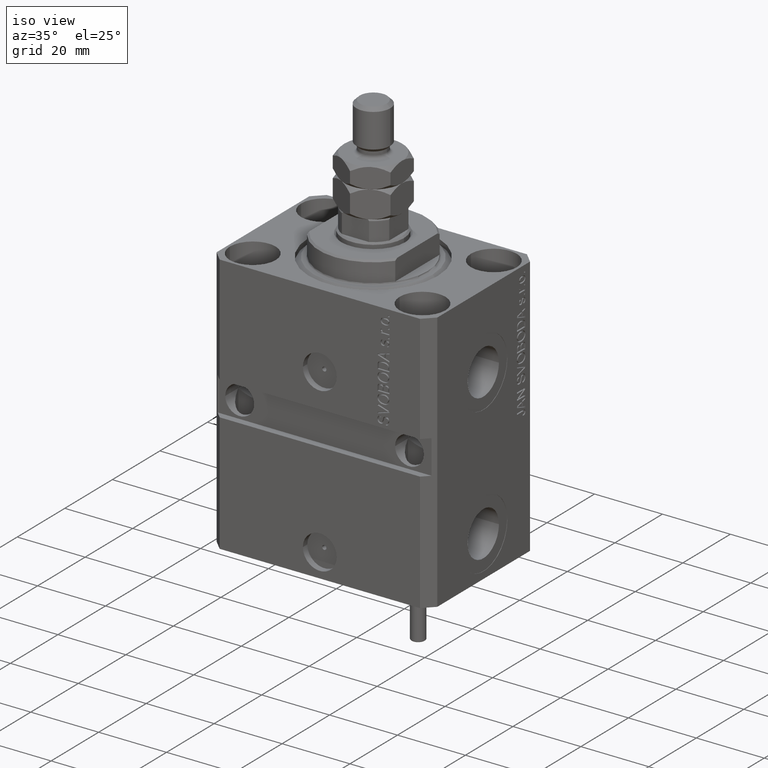
[diagram: clean part render]
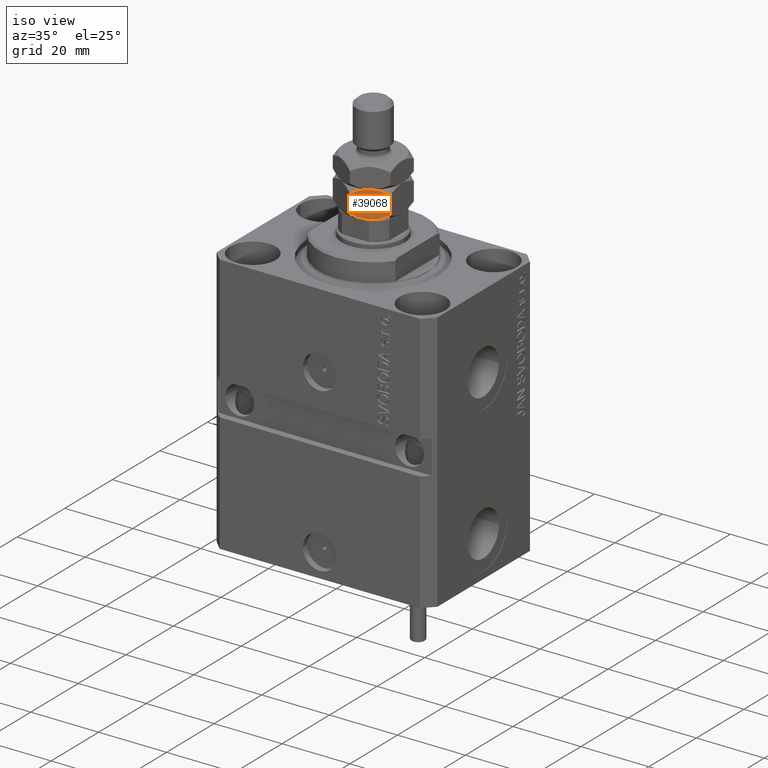
[diagram: same view with one face highlighted and labeled with its STEP entity id]
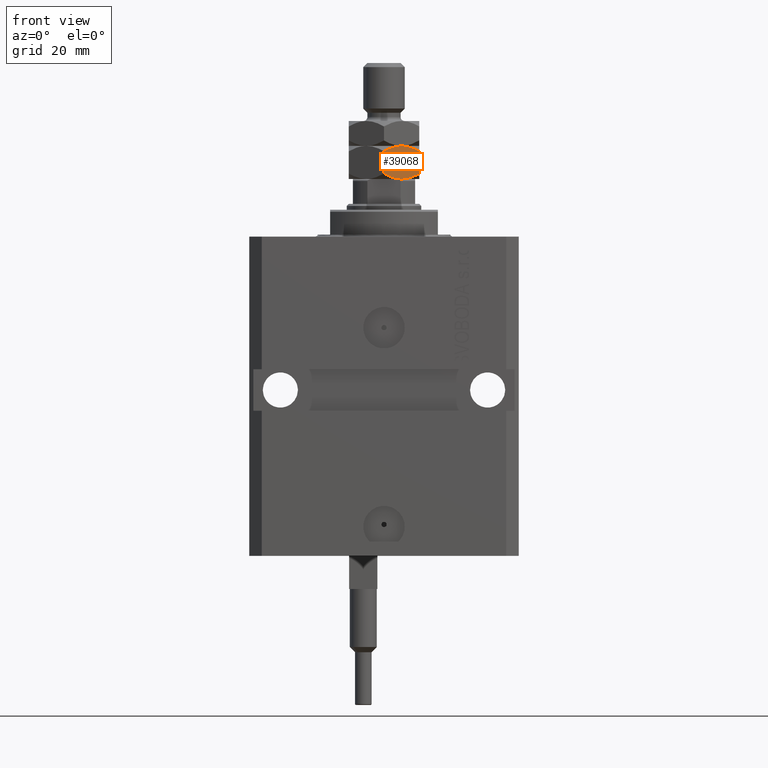
[diagram: same view with one face highlighted and labeled with its STEP entity id]
A machine part, iso view. The second image highlights one B-rep face of the part: STEP entity #39068.
A second angle (front view) of the same face is appended — the face is thin or edge-on in the first view.
In plain terms, the highlighted planar face has unit normal (-0.5, 0.866, 0).
Its self-contained STEP definition (entity closure, byte-faithful):
#144 = CARTESIAN_POINT ( 'NONE',  ( 2.766281260884825066, -8.217841345597570069, 7.839178292058168296 ) ) ;
#308 = CARTESIAN_POINT ( 'NONE',  ( -9.757819552369539906E-16, -9.814954576223637872, 8.000000000000000000 ) ) ;
#486 = CARTESIAN_POINT ( 'NONE',  ( 4.989245346831671313, -6.934412432177284202, 8.000000000000001776 ) ) ;
#729 = CARTESIAN_POINT ( 'NONE',  ( 4.249999999999994671, -7.361215932167728404, 8.000000000000000000 ) ) ;
#3282 = VECTOR ( 'NONE', #4591, 1000.000000000000000 ) ;
#3397 = FACE_OUTER_BOUND ( 'NONE', #32825, .T. ) ;
#3820 = B_SPLINE_CURVE_WITH_KNOTS ( 'NONE', 3,
 ( #39101, #27460, #24167, #43654, #144, #19876, #4426, #4933 ),
 .UNSPECIFIED., .F., .F.,
 ( 4, 2, 2, 4 ),
 ( 2.544313836662128767E-07, 0.002543776790731947998, 0.003815537970406090475, 0.005087299150080232951 ),
 .UNSPECIFIED. ) ;
#4031 = CARTESIAN_POINT ( 'NONE',  ( 7.834310611062749174, -5.291813236011422283, 7.069381371676068504 ) ) ;
#4426 = CARTESIAN_POINT ( 'NONE',  ( 3.877770021349439045, -7.576123010542081815, 8.000000000000003553 ) ) ;
#4591 = DIRECTION ( 'NONE',  ( -0.000000000000000000, -0.000000000000000000, -1.000000000000000000 ) ) ;
#4933 = CARTESIAN_POINT ( 'NONE',  ( 4.249999999999994671, -7.361215932167728404, 8.000000000000000000 ) ) ;
#5215 = CARTESIAN_POINT ( 'NONE',  ( 5.733718739115172269, -6.504590518737895621, 0.1608217079418340634 ) ) ;
#6399 = CARTESIAN_POINT ( 'NONE',  ( 6.092930036521920556, -6.297199779484154547, 0.2536240893246553552 ) ) ;
#6767 = CARTESIAN_POINT ( 'NONE',  ( 0.6656893889372494932, -9.430618628324040742, 0.9306186283239298307 ) ) ;
#7447 = CARTESIAN_POINT ( 'NONE',  ( -9.757819552369539906E-16, -9.814954576223637872, 8.000000000000000000 ) ) ;
#7835 = CARTESIAN_POINT ( 'NONE',  ( 7.149107353189445568, -5.687415521394182605, 7.399061587263878970 ) ) ;
#8000 = AXIS2_PLACEMENT_3D ( 'NONE', #7447, #23373, #19334 ) ;
#10754 = PLANE ( 'NONE',  #8000 ) ;
#11133 = B_SPLINE_CURVE_WITH_KNOTS ( 'NONE', 3,
 ( #729, #486, #46558, #7835, #4031, #39703 ),
 .UNSPECIFIED., .F., .F.,
 ( 4, 2, 4 ),
 ( 0.005087299150080232951, 0.007613005268011856577, 0.01013871138594348020 ),
 .UNSPECIFIED. ) ;
#13066 = CARTESIAN_POINT ( 'NONE',  ( 4.249999999999997335, -7.361215932167732845, 0.000000000000000000 ) ) ;
#13742 = ORIENTED_EDGE ( 'NONE', *, *, #23133, .F. ) ;
#15969 = CARTESIAN_POINT ( 'NONE',  ( -1.010883460254179403E-15, -9.814954576223637872, 1.314954576223630323 ) ) ;
#17154 = ORIENTED_EDGE ( 'NONE', *, *, #42890, .T. ) ;
#17338 = ORIENTED_EDGE ( 'NONE', *, *, #42826, .F. ) ;
#17811 = CARTESIAN_POINT ( 'NONE',  ( 4.249999999999997335, -7.361215932167732845, 0.000000000000000000 ) ) ;
#17912 = CARTESIAN_POINT ( 'NONE',  ( 1.350892646810552433, -9.035016342941277756, 0.6009384127361203642 ) ) ;
#18160 = VERTEX_POINT ( 'NONE', #21238 ) ;
#19334 = DIRECTION ( 'NONE',  ( -0.8660254037844389297, -0.4999999999999995559, 0.000000000000000000 ) ) ;
#19869 = CARTESIAN_POINT ( 'NONE',  ( -7.581970720220202129E-16, -9.814954576223637872, 6.685045423776371010 ) ) ;
#19876 = CARTESIAN_POINT ( 'NONE',  ( 3.499970675361007366, -7.794245564648166535, 7.966263250401633300 ) ) ;
#20163 = VERTEX_POINT ( 'NONE', #19869 ) ;
#21238 = CARTESIAN_POINT ( 'NONE',  ( 4.249999999999994671, -7.361215932167728404, 8.000000000000000000 ) ) ;
#21457 = B_SPLINE_CURVE_WITH_KNOTS ( 'NONE', 3,
 ( #40137, #24940, #36330, #6399, #5215, #47478, #40380, #13066 ),
 .UNSPECIFIED., .F., .F.,
 ( 4, 2, 2, 4 ),
 ( 2.544313836654547822E-07, 0.002543776790731953636, 0.003815537970406099148, 0.005087299150080244227 ),
 .UNSPECIFIED. ) ;
#22562 = EDGE_CURVE ( 'NONE', #32079, #24687, #21457, .T. ) ;
#23133 = EDGE_CURVE ( 'NONE', #18160, #23656, #11133, .T. ) ;
#23373 = DIRECTION ( 'NONE',  ( -0.4999999999999995559, 0.8660254037844389297, 0.000000000000000000 ) ) ;
#23656 = VERTEX_POINT ( 'NONE', #46435 ) ;
#24167 = CARTESIAN_POINT ( 'NONE',  ( 1.348005192929855101, -9.036683415216574033, 7.396790787579876181 ) ) ;
#24429 = VECTOR ( 'NONE', #41968, 1000.000000000000000 ) ;
#24687 = VERTEX_POINT ( 'NONE', #17811 ) ;
#24940 = CARTESIAN_POINT ( 'NONE',  ( 7.833539178395718672, -5.292258622869395523, 0.9301732414660633941 ) ) ;
#25991 = CARTESIAN_POINT ( 'NONE',  ( 3.510754653168322914, -7.788019432158174382, -1.295960409299079124E-15 ) ) ;
#26535 = LINE ( 'NONE', #37432, #24429 ) ;
#27078 = EDGE_CURVE ( 'NONE', #24687, #45638, #42760, .T. ) ;
#27460 = CARTESIAN_POINT ( 'NONE',  ( 0.6664608216042839928, -9.430173241466070166, 7.069826758533944933 ) ) ;
#32079 = VERTEX_POINT ( 'NONE', #44287 ) ;
#32825 = EDGE_LOOP ( 'NONE', ( #33601, #46352, #13742, #17338, #17154, #47602 ) ) ;
#32842 = CARTESIAN_POINT ( 'NONE',  ( 2.784079206026082609, -8.207565697179241226, 0.1305202873832139177 ) ) ;
#33601 = ORIENTED_EDGE ( 'NONE', *, *, #22562, .F. ) ;
#36330 = CARTESIAN_POINT ( 'NONE',  ( 7.151994807070145121, -5.685748449118888104, 0.6032092124201289263 ) ) ;
#37432 = CARTESIAN_POINT ( 'NONE',  ( 8.500000000000001776, -4.907477288111821601, 8.000000000000000000 ) ) ;
#37625 = CARTESIAN_POINT ( 'NONE',  ( 4.249999999999997335, -7.361215932167732845, 0.000000000000000000 ) ) ;
#39068 = ADVANCED_FACE ( 'NONE', ( #3397 ), #10754, .F. ) ;
#39101 = CARTESIAN_POINT ( 'NONE',  ( -7.581970720220202129E-16, -9.814954576223637872, 6.685045423776371010 ) ) ;
#39703 = CARTESIAN_POINT ( 'NONE',  ( 8.500000000000001776, -4.907477288111821601, 6.685045423776368345 ) ) ;
#40137 = CARTESIAN_POINT ( 'NONE',  ( 8.500000000000001776, -4.907477288111817160, 1.314954576223629878 ) ) ;
#40380 = CARTESIAN_POINT ( 'NONE',  ( 4.622229978650556070, -7.146308853793384763, -1.291725244562808017E-15 ) ) ;
#41968 = DIRECTION ( 'NONE',  ( -0.000000000000000000, -0.000000000000000000, -1.000000000000000000 ) ) ;
#42760 = B_SPLINE_CURVE_WITH_KNOTS ( 'NONE', 3,
 ( #37625, #25991, #32842, #17912, #6767, #48297 ),
 .UNSPECIFIED., .F., .F.,
 ( 4, 2, 4 ),
 ( 0.005087299150080244227, 0.007613005268011863516, 0.01013871138594348367 ),
 .UNSPECIFIED. ) ;
#42826 = EDGE_CURVE ( 'NONE', #20163, #18160, #3820, .T. ) ;
#42890 = EDGE_CURVE ( 'NONE', #20163, #45638, #43326, .T. ) ;
#43326 = LINE ( 'NONE', #308, #3282 ) ;
#43654 = CARTESIAN_POINT ( 'NONE',  ( 2.407069963478076335, -8.425232084851307590, 7.746375910675348031 ) ) ;
#44287 = CARTESIAN_POINT ( 'NONE',  ( 8.500000000000001776, -4.907477288111817160, 1.314954576223629878 ) ) ;
#45638 = VERTEX_POINT ( 'NONE', #15969 ) ;
#46352 = ORIENTED_EDGE ( 'NONE', *, *, #46587, .F. ) ;
#46435 = CARTESIAN_POINT ( 'NONE',  ( 8.500000000000001776, -4.907477288111821601, 6.685045423776368345 ) ) ;
#46558 = CARTESIAN_POINT ( 'NONE',  ( 5.715920793973914726, -6.514866167156222687, 7.869479712616787026 ) ) ;
#46587 = EDGE_CURVE ( 'NONE', #23656, #32079, #26535, .T. ) ;
#47478 = CARTESIAN_POINT ( 'NONE',  ( 5.000029324638989081, -6.928186299687297378, 0.03373674959836757414 ) ) ;
#47602 = ORIENTED_EDGE ( 'NONE', *, *, #27078, .F. ) ;
#48297 = CARTESIAN_POINT ( 'NONE',  ( -1.010883460254179403E-15, -9.814954576223637872, 1.314954576223630323 ) ) ;